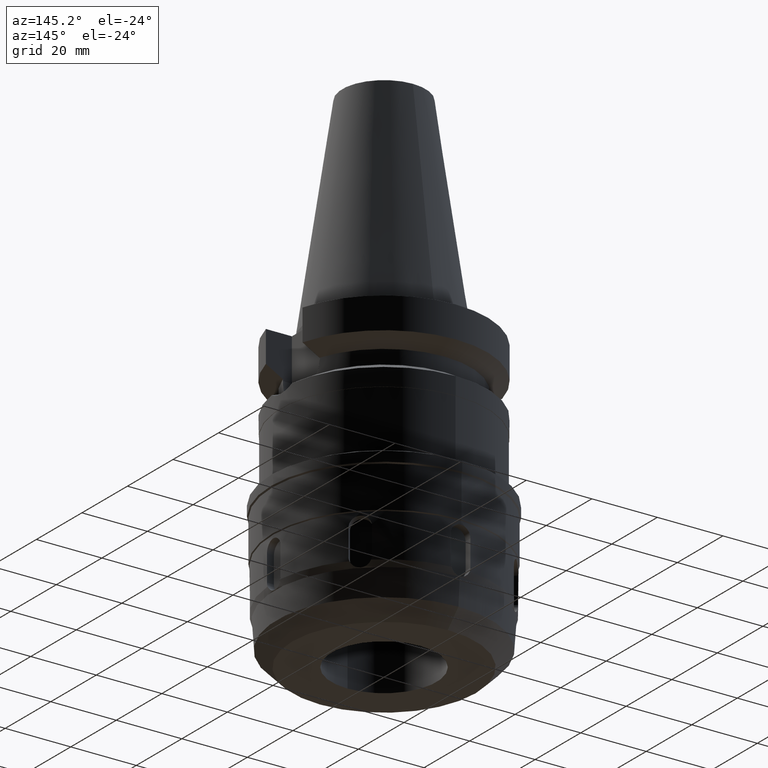
[diagram: clean part render]
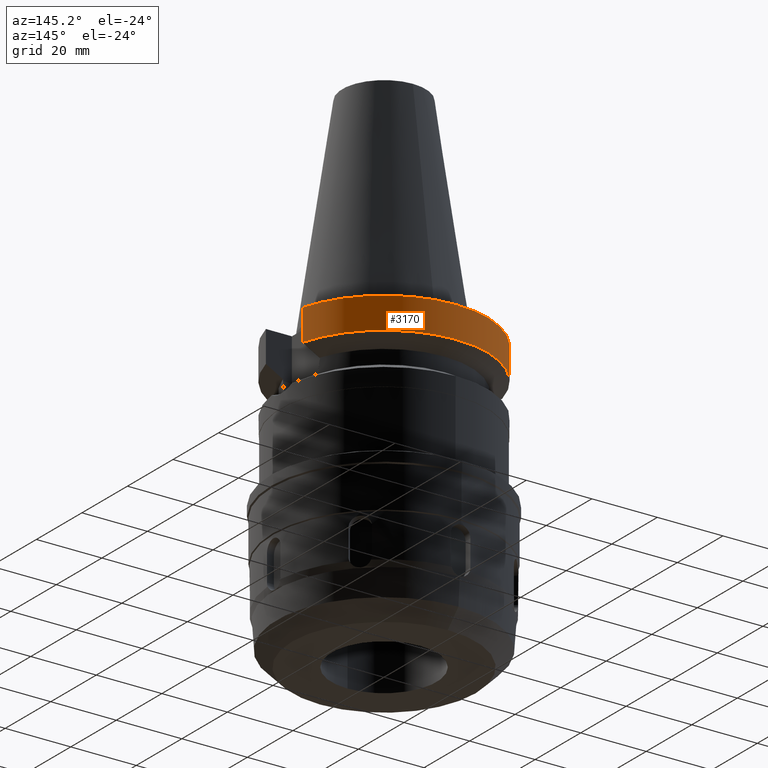
[diagram: same view with one face highlighted and labeled with its STEP entity id]
A machine part, auxiliary view. The second image highlights one B-rep face of the part: STEP entity #3170.
In plain terms, the highlighted cylindrical surface (partial cylindrical patch) has radius 31.5 mm, axis along (0, 0, -1).
Its self-contained STEP definition (entity closure, byte-faithful):
#108=CARTESIAN_POINT('',(0.E0,2.120720862083E-14,-2.E0));
#109=DIRECTION('',(0.E0,0.E0,-1.E0));
#110=DIRECTION('',(-9.667943721520E-1,2.555555555556E-1,0.E0));
#111=AXIS2_PLACEMENT_3D('',#108,#109,#110);
#116=CARTESIAN_POINT('',(0.E0,2.120720862083E-14,-2.E0));
#117=DIRECTION('',(0.E0,0.E0,-1.E0));
#118=DIRECTION('',(0.E0,1.E0,0.E0));
#119=AXIS2_PLACEMENT_3D('',#116,#117,#118);
#344=CARTESIAN_POINT('',(3.045402291384E1,8.049999277214E0,-1.156551216265E1));
#393=CARTESIAN_POINT('',(-3.045402162722E1,8.050004144651E0,-1.156546831942E1));
#414=CARTESIAN_POINT('',(0.E0,1.065333950388E-14,-1.156550565267E1));
#415=DIRECTION('',(0.E0,0.E0,1.E0));
#416=DIRECTION('',(9.667943721520E-1,2.555555555555E-1,0.E0));
#417=AXIS2_PLACEMENT_3D('',#414,#415,#416);
#422=CARTESIAN_POINT('',(0.E0,1.065333950388E-14,-1.156550565267E1));
#423=DIRECTION('',(0.E0,0.E0,1.E0));
#424=DIRECTION('',(0.E0,1.E0,0.E0));
#425=AXIS2_PLACEMENT_3D('',#422,#423,#424);
#430=DIRECTION('',(1.145337579137E-7,4.332930336213E-7,-9.999999999999E-1));
#431=VECTOR('',#430,9.565468319422E0);
#432=CARTESIAN_POINT('',(-3.045402272279E1,8.05E0,-2.E0));
#433=LINE('',#432,#431);
#437=DIRECTION('',(-1.997336767533E-8,7.556167847503E-8,1.E0));
#438=VECTOR('',#437,9.565512162653E0);
#439=CARTESIAN_POINT('',(3.045402291384E1,8.049999277214E0,-1.156551216265E1));
#440=LINE('',#439,#438);
#2759=CARTESIAN_POINT('',(-3.045402272279E1,8.05E0,-2.E0));
#2760=VERTEX_POINT('',#2759);
#2761=CARTESIAN_POINT('',(-3.046064939756E-14,3.15E1,-2.E0));
#2762=CARTESIAN_POINT('',(3.045402272279E1,8.05E0,-2.E0));
#2763=VERTEX_POINT('',#2761);
#2764=VERTEX_POINT('',#2762);
#2781=VERTEX_POINT('',#393);
#2786=VERTEX_POINT('',#344);
#2787=CARTESIAN_POINT('',(0.E0,3.15E1,-1.156550565267E1));
#2788=VERTEX_POINT('',#2787);
#3157=CARTESIAN_POINT('',(0.E0,2.120720862083E-14,7.317E1));
#3158=DIRECTION('',(0.E0,0.E0,-1.E0));
#3159=DIRECTION('',(0.E0,-1.E0,0.E0));
#3160=AXIS2_PLACEMENT_3D('',#3157,#3158,#3159);
#3161=CYLINDRICAL_SURFACE('',#3160,3.15E1);
#3162=ORIENTED_EDGE('',*,*,#3132,.T.);
#3163=ORIENTED_EDGE('',*,*,#3152,.F.);
#3164=ORIENTED_EDGE('',*,*,#3150,.F.);
#3165=ORIENTED_EDGE('',*,*,#3094,.T.);
#3166=ORIENTED_EDGE('',*,*,#2940,.F.);
#3167=ORIENTED_EDGE('',*,*,#2938,.F.);
#3168=EDGE_LOOP('',(#3162,#3163,#3164,#3165,#3166,#3167));
#3169=FACE_OUTER_BOUND('',#3168,.F.);
#112=CIRCLE('',#111,3.15E1);
#120=CIRCLE('',#119,3.15E1);
#418=CIRCLE('',#417,3.15E1);
#426=CIRCLE('',#425,3.15E1);
#2938=EDGE_CURVE('',#2760,#2763,#112,.T.);
#2940=EDGE_CURVE('',#2763,#2764,#120,.T.);
#3094=EDGE_CURVE('',#2786,#2764,#440,.T.);
#3132=EDGE_CURVE('',#2760,#2781,#433,.T.);
#3150=EDGE_CURVE('',#2786,#2788,#418,.T.);
#3152=EDGE_CURVE('',#2788,#2781,#426,.T.);
#3170=ADVANCED_FACE('',(#3169),#3161,.T.);